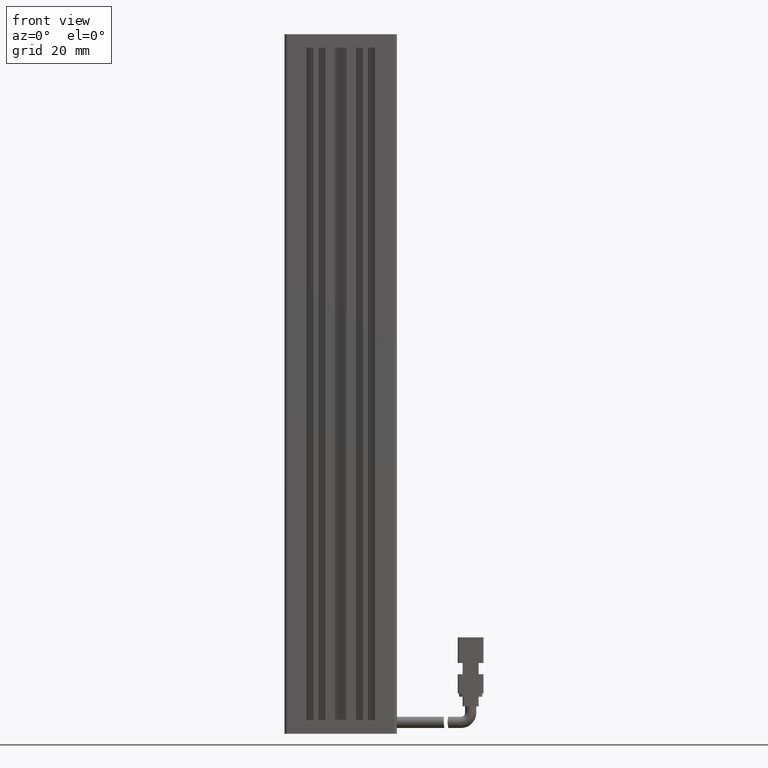
[diagram: clean part render]
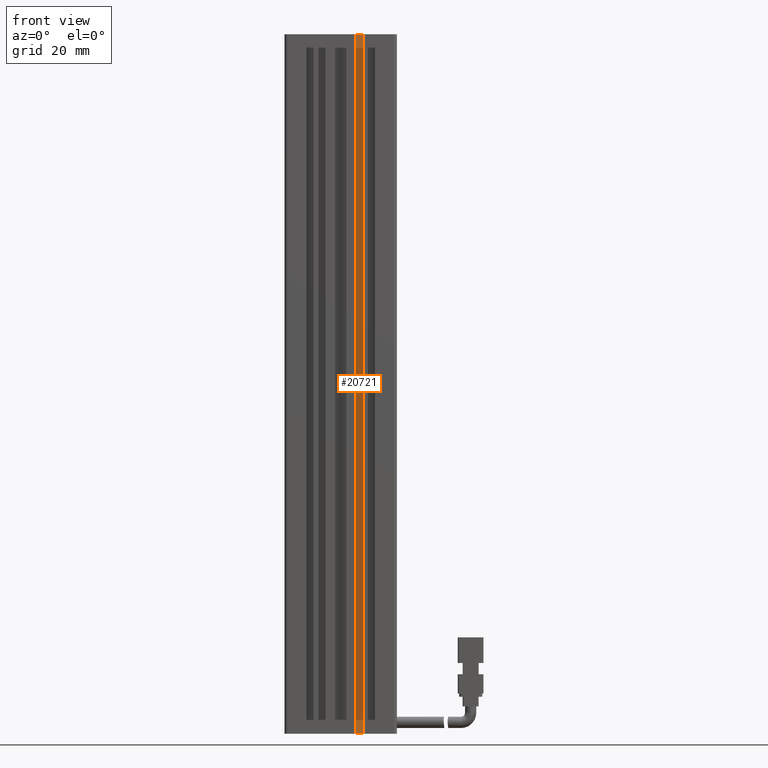
[diagram: same view with one face highlighted and labeled with its STEP entity id]
A machine part, front view. The second image highlights one B-rep face of the part: STEP entity #20721.
In plain terms, the highlighted planar face has unit normal (-0, -1, 0).
Its self-contained STEP definition (entity closure, byte-faithful):
#501 = CARTESIAN_POINT ( 'NONE',  ( 47.92537974683541800, 16.49073232304836600, -6.000000000000005300 ) ) ;
#1223 = VECTOR ( 'NONE', #82470, 1000.000000000000000 ) ;
#6070 = CARTESIAN_POINT ( 'NONE',  ( 45.72537974683541500, 16.49073232304837000, -224.0000000000000000 ) ) ;
#8285 = DIRECTION ( 'NONE',  ( 1.000000000000000000, -7.885106708985484100E-016, 0.0000000000000000000 ) ) ;
#10313 = LINE ( 'NONE', #75553, #71511 ) ;
#19880 = DIRECTION ( 'NONE',  ( 1.000000000000000000, 0.0000000000000000000, 0.0000000000000000000 ) ) ;
#19949 = VERTEX_POINT ( 'NONE', #58359 ) ;
#20721 = ADVANCED_FACE ( 'NONE', ( #57541 ), #77649, .T. ) ;
#21537 = VERTEX_POINT ( 'NONE', #6070 ) ;
#25317 = EDGE_LOOP ( 'NONE', ( #86398, #46540, #78353, #33487 ) ) ;
#27345 = DIRECTION ( 'NONE',  ( -0.0000000000000000000, -0.0000000000000000000, -1.000000000000000000 ) ) ;
#28255 = VERTEX_POINT ( 'NONE', #62052 ) ;
#30399 = DIRECTION ( 'NONE',  ( -0.0000000000000000000, -0.0000000000000000000, -1.000000000000000000 ) ) ;
#33487 = ORIENTED_EDGE ( 'NONE', *, *, #72109, .F. ) ;
#36807 = EDGE_CURVE ( 'NONE', #63059, #21537, #64938, .T. ) ;
#37138 = CARTESIAN_POINT ( 'NONE',  ( 45.72537974683541500, 16.49073232304837300, -6.000000000000005300 ) ) ;
#46372 = VECTOR ( 'NONE', #30399, 1000.000000000000000 ) ;
#46540 = ORIENTED_EDGE ( 'NONE', *, *, #36807, .T. ) ;
#46654 = EDGE_CURVE ( 'NONE', #63059, #19949, #60392, .T. ) ;
#46796 = AXIS2_PLACEMENT_3D ( 'NONE', #69755, #84373, #8285 ) ;
#57541 = FACE_OUTER_BOUND ( 'NONE', #25317, .T. ) ;
#58359 = CARTESIAN_POINT ( 'NONE',  ( 47.92537974683541800, 16.49073232304837000, -6.000000000000005300 ) ) ;
#60271 = CARTESIAN_POINT ( 'NONE',  ( 45.72537974683541500, 16.49073232304837000, -6.000000000000005300 ) ) ;
#60392 = LINE ( 'NONE', #75457, #1223 ) ;
#62052 = CARTESIAN_POINT ( 'NONE',  ( 47.92537974683541800, 16.49073232304837000, -224.0000000000000000 ) ) ;
#63059 = VERTEX_POINT ( 'NONE', #60271 ) ;
#64367 = LINE ( 'NONE', #501, #85109 ) ;
#64938 = LINE ( 'NONE', #37138, #46372 ) ;
#66699 = EDGE_CURVE ( 'NONE', #21537, #28255, #10313, .T. ) ;
#69755 = CARTESIAN_POINT ( 'NONE',  ( 40.92537974683543200, 16.49073232304837300, -6.000000000000005300 ) ) ;
#71511 = VECTOR ( 'NONE', #19880, 1000.000000000000000 ) ;
#72109 = EDGE_CURVE ( 'NONE', #19949, #28255, #64367, .T. ) ;
#75457 = CARTESIAN_POINT ( 'NONE',  ( 40.92537974683542500, 16.49073232304837000, -6.000000000000005300 ) ) ;
#75553 = CARTESIAN_POINT ( 'NONE',  ( 40.92537974683542500, 16.49073232304837000, -224.0000000000000000 ) ) ;
#77649 = PLANE ( 'NONE',  #46796 ) ;
#78353 = ORIENTED_EDGE ( 'NONE', *, *, #66699, .T. ) ;
#82470 = DIRECTION ( 'NONE',  ( 1.000000000000000000, 0.0000000000000000000, 0.0000000000000000000 ) ) ;
#84373 = DIRECTION ( 'NONE',  ( -7.885106708985484100E-016, -1.000000000000000000, 0.0000000000000000000 ) ) ;
#85109 = VECTOR ( 'NONE', #27345, 1000.000000000000000 ) ;
#86398 = ORIENTED_EDGE ( 'NONE', *, *, #46654, .F. ) ;